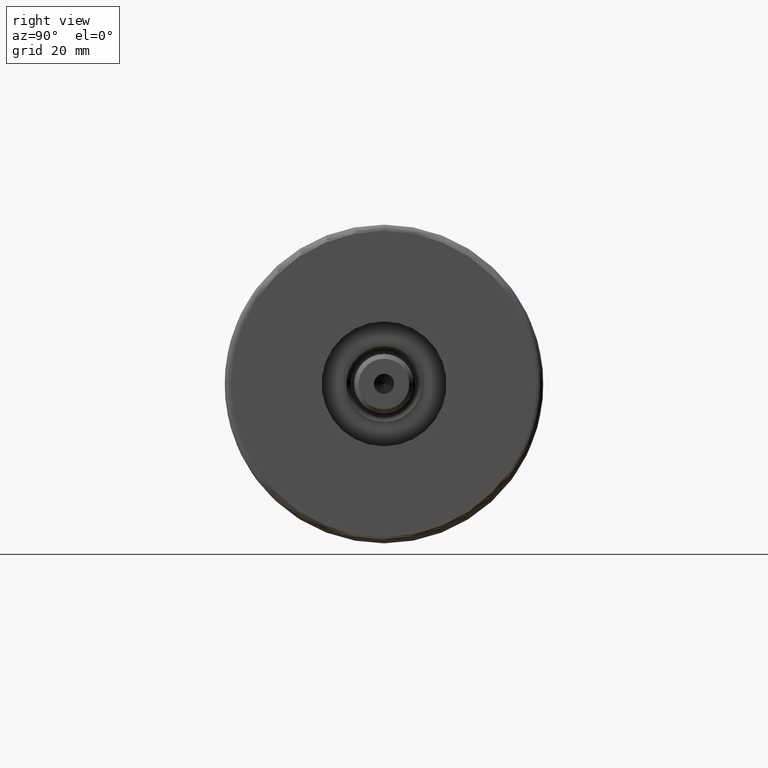
[diagram: clean part render]
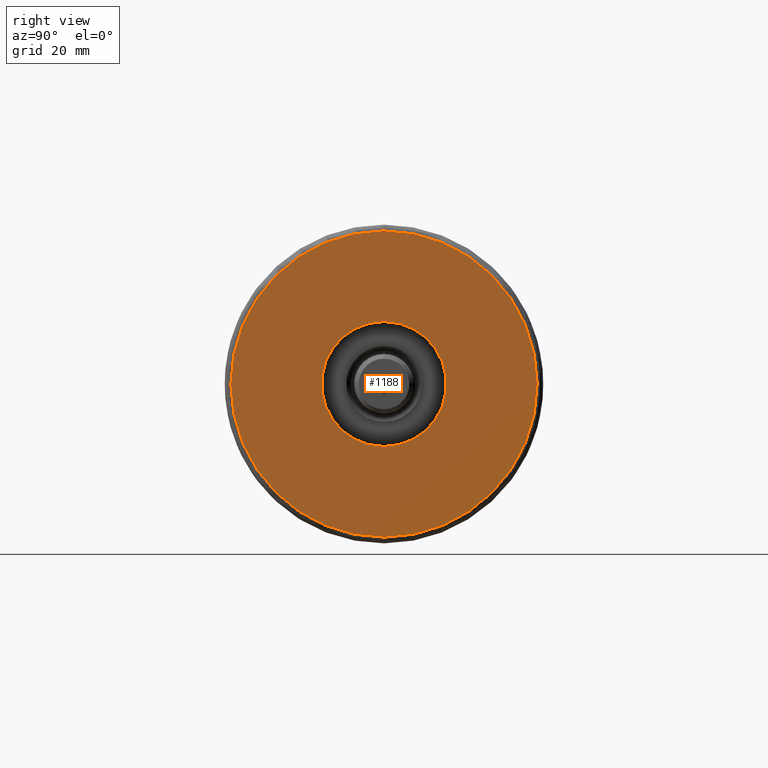
[diagram: same view with one face highlighted and labeled with its STEP entity id]
A machine part, right view. The second image highlights one B-rep face of the part: STEP entity #1188.
In plain terms, the highlighted planar face has unit normal (1, 0, -0).
Its self-contained STEP definition (entity closure, byte-faithful):
#14 = EDGE_CURVE ( 'NONE', #2239, #1640, #1176, .T. ) ;
#80 = AXIS2_PLACEMENT_3D ( 'NONE', #211, #3016, #4276 ) ;
#211 = CARTESIAN_POINT ( 'NONE',  ( 0.000000000000000000, 0.000000000000000000, 28.00000000000000000 ) ) ;
#322 = DIRECTION ( 'NONE',  ( 0.000000000000000000, 0.000000000000000000, 1.000000000000000000 ) ) ;
#343 = EDGE_CURVE ( 'NONE', #2157, #2526, #915, .T. ) ;
#421 = DIRECTION ( 'NONE',  ( 0.000000000000000000, 0.000000000000000000, 1.000000000000000000 ) ) ;
#518 = EDGE_LOOP ( 'NONE', ( #2345, #652 ) ) ;
#652 = ORIENTED_EDGE ( 'NONE', *, *, #3734, .T. ) ;
#713 = CARTESIAN_POINT ( 'NONE',  ( 0.000000000000000000, 0.000000000000000000, 28.00000000000000000 ) ) ;
#762 = CIRCLE ( 'NONE', #4426, 48.99999999999998579 ) ;
#915 = CIRCLE ( 'NONE', #3124, 48.99999999999998579 ) ;
#1071 = DIRECTION ( 'NONE',  ( 1.000000000000000000, 0.000000000000000000, 0.000000000000000000 ) ) ;
#1153 = EDGE_CURVE ( 'NONE', #1640, #2239, #1269, .T. ) ;
#1176 = CIRCLE ( 'NONE', #1613, 20.00000000000000000 ) ;
#1188 = ADVANCED_FACE ( 'NONE', ( #1816, #3131 ), #3247, .T. ) ;
#1218 = DIRECTION ( 'NONE',  ( 0.000000000000000000, 0.000000000000000000, 1.000000000000000000 ) ) ;
#1269 = CIRCLE ( 'NONE', #1700, 20.00000000000000000 ) ;
#1613 = AXIS2_PLACEMENT_3D ( 'NONE', #1746, #421, #4180 ) ;
#1640 = VERTEX_POINT ( 'NONE', #1976 ) ;
#1700 = AXIS2_PLACEMENT_3D ( 'NONE', #3666, #4883, #2236 ) ;
#1746 = CARTESIAN_POINT ( 'NONE',  ( 0.000000000000000000, 0.000000000000000000, 28.00000000000000000 ) ) ;
#1816 = FACE_OUTER_BOUND ( 'NONE', #518, .T. ) ;
#1976 = CARTESIAN_POINT ( 'NONE',  ( -20.00000000000000000, 2.449293598294706513E-15, 28.00000000000000000 ) ) ;
#2113 = CARTESIAN_POINT ( 'NONE',  ( -48.99999999999998579, 6.123233995736764507E-15, 28.00000000000000000 ) ) ;
#2157 = VERTEX_POINT ( 'NONE', #2603 ) ;
#2236 = DIRECTION ( 'NONE',  ( 1.000000000000000000, 0.000000000000000000, 0.000000000000000000 ) ) ;
#2239 = VERTEX_POINT ( 'NONE', #2625 ) ;
#2345 = ORIENTED_EDGE ( 'NONE', *, *, #343, .T. ) ;
#2526 = VERTEX_POINT ( 'NONE', #2113 ) ;
#2603 = CARTESIAN_POINT ( 'NONE',  ( 48.99999999999998579, 0.000000000000000000, 28.00000000000000000 ) ) ;
#2625 = CARTESIAN_POINT ( 'NONE',  ( 20.00000000000000000, 0.000000000000000000, 28.00000000000000000 ) ) ;
#2674 = EDGE_LOOP ( 'NONE', ( #4268, #4708 ) ) ;
#3016 = DIRECTION ( 'NONE',  ( 0.000000000000000000, 0.000000000000000000, 1.000000000000000000 ) ) ;
#3124 = AXIS2_PLACEMENT_3D ( 'NONE', #4366, #322, #3549 ) ;
#3131 = FACE_BOUND ( 'NONE', #2674, .T. ) ;
#3247 = PLANE ( 'NONE',  #80 ) ;
#3549 = DIRECTION ( 'NONE',  ( 1.000000000000000000, 0.000000000000000000, 0.000000000000000000 ) ) ;
#3666 = CARTESIAN_POINT ( 'NONE',  ( 0.000000000000000000, 0.000000000000000000, 28.00000000000000000 ) ) ;
#3734 = EDGE_CURVE ( 'NONE', #2526, #2157, #762, .T. ) ;
#4180 = DIRECTION ( 'NONE',  ( 1.000000000000000000, 0.000000000000000000, 0.000000000000000000 ) ) ;
#4268 = ORIENTED_EDGE ( 'NONE', *, *, #14, .F. ) ;
#4276 = DIRECTION ( 'NONE',  ( 1.000000000000000000, 0.000000000000000000, -0.000000000000000000 ) ) ;
#4366 = CARTESIAN_POINT ( 'NONE',  ( 0.000000000000000000, 0.000000000000000000, 28.00000000000000000 ) ) ;
#4426 = AXIS2_PLACEMENT_3D ( 'NONE', #713, #1218, #1071 ) ;
#4708 = ORIENTED_EDGE ( 'NONE', *, *, #1153, .F. ) ;
#4883 = DIRECTION ( 'NONE',  ( 0.000000000000000000, 0.000000000000000000, 1.000000000000000000 ) ) ;